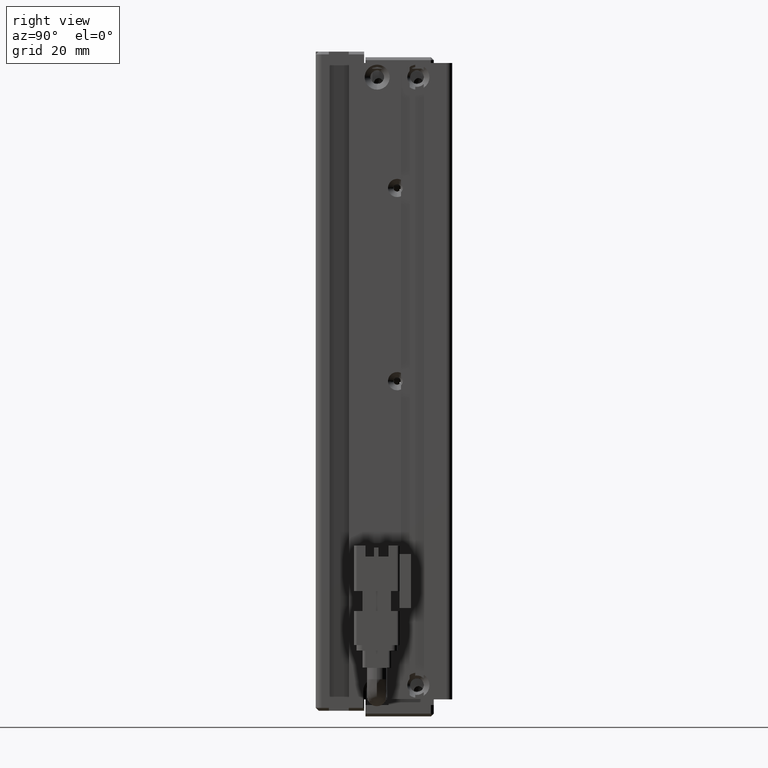
[diagram: clean part render]
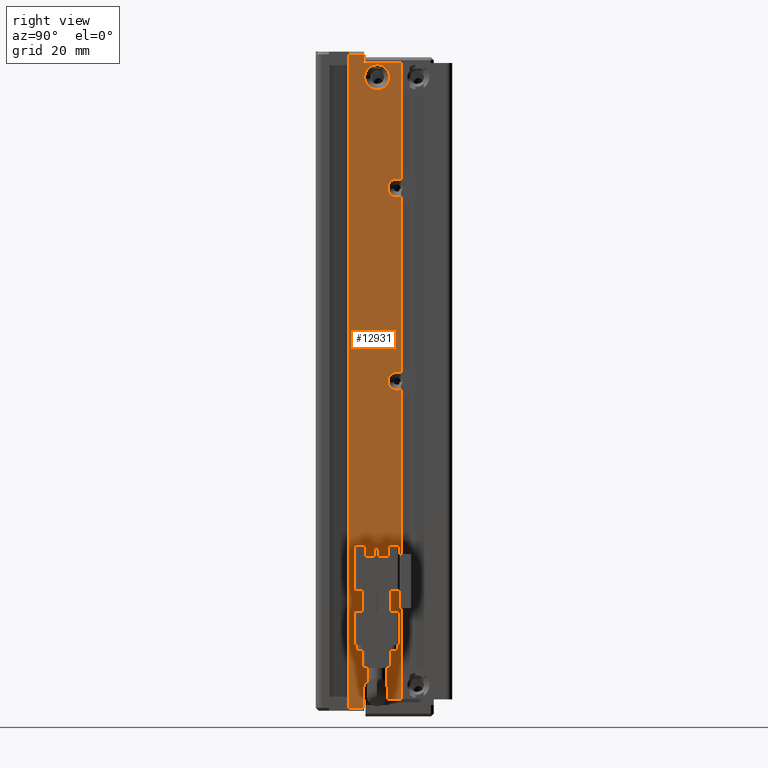
[diagram: same view with one face highlighted and labeled with its STEP entity id]
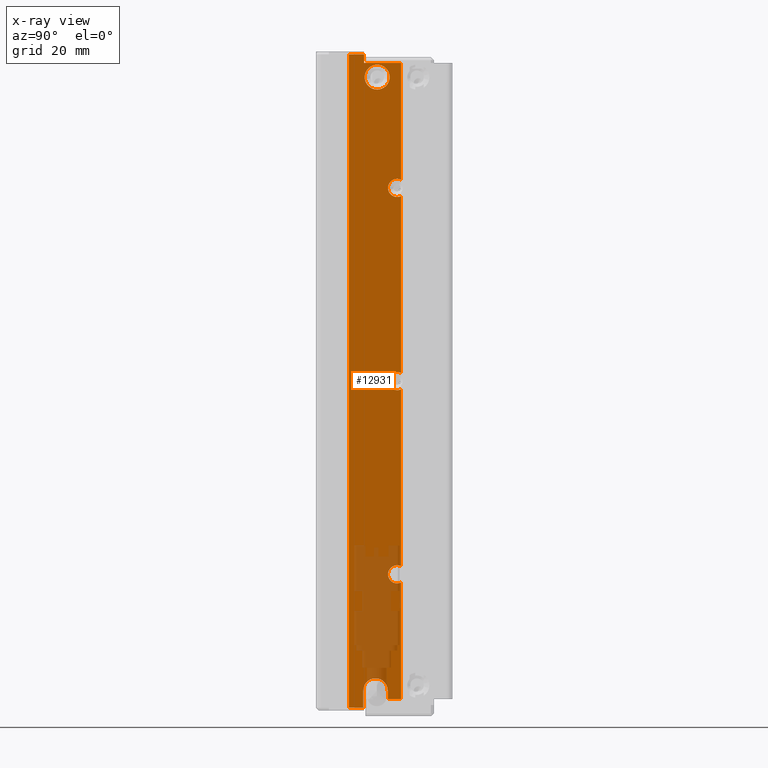
[diagram: x-ray of the same camera — body ghosted, the highlighted face saturated]
A machine part, right view. The second image highlights one B-rep face of the part: STEP entity #12931.
The next image is the same camera in x-ray: the body ghosted, the highlighted face saturated — about 15% of this face is hidden behind the body in this view.
In plain terms, the highlighted planar face has unit normal (-1, 0, 0).
Its self-contained STEP definition (entity closure, byte-faithful):
#39 = CARTESIAN_POINT ( 'NONE',  ( 51.82661489659529500, 23.39432492616544900, -56.00634592792313500 ) ) ;
#390 = DIRECTION ( 'NONE',  ( 0.0000000000000000000, 0.0000000000000000000, 1.000000000000000000 ) ) ;
#856 = CARTESIAN_POINT ( 'NONE',  ( 51.82661489659529500, 16.54432492616542300, -56.50634592792312800 ) ) ;
#1176 = ORIENTED_EDGE ( 'NONE', *, *, #17028, .F. ) ;
#2362 = DIRECTION ( 'NONE',  ( -0.0000000000000000000, -0.0000000000000000000, -1.000000000000000000 ) ) ;
#2844 = VECTOR ( 'NONE', #24170, 1000.000000000000000 ) ;
#3999 = EDGE_CURVE ( 'NONE', #47282, #50619, #27626, .T. ) ;
#4236 = CIRCLE ( 'NONE', #43521, 1.599999999996271100 ) ;
#4741 = LINE ( 'NONE', #28181, #71308 ) ;
#4919 = CARTESIAN_POINT ( 'NONE',  ( 51.82661489659528800, 6.837390071471488400, -56.50634592792312800 ) ) ;
#4928 = AXIS2_PLACEMENT_3D ( 'NONE', #19637, #64408, #36575 ) ;
#5599 = CARTESIAN_POINT ( 'NONE',  ( 51.82661489663122700, 21.24432492616542200, -168.4563459279231400 ) ) ;
#5720 = CARTESIAN_POINT ( 'NONE',  ( 51.82661489657516500, 25.74432492616542200, -146.5675964708904600 ) ) ;
#5795 = CARTESIAN_POINT ( 'NONE',  ( 51.82661489661668200, 21.54432492616541600, -60.50634592792314200 ) ) ;
#5967 = CARTESIAN_POINT ( 'NONE',  ( 51.82661489652895200, 25.04432492616542300, -80.00634592792313500 ) ) ;
#6179 = ORIENTED_EDGE ( 'NONE', *, *, #37930, .F. ) ;
#6221 = DIRECTION ( 'NONE',  ( 1.000000000000000000, 0.0000000000000000000, 0.0000000000000000000 ) ) ;
#6230 = CARTESIAN_POINT ( 'NONE',  ( 51.82661489659529500, 6.837390071471488400, -56.00634592792313500 ) ) ;
#6252 = LINE ( 'NONE', #36630, #26356 ) ;
#6421 = DIRECTION ( 'NONE',  ( 0.0000000000000000000, 0.0000000000000000000, -1.000000000000000000 ) ) ;
#6923 = VERTEX_POINT ( 'NONE', #55716 ) ;
#7235 = CARTESIAN_POINT ( 'NONE',  ( 51.82661489657825600, 25.74432492616542200, -115.4450953849179300 ) ) ;
#7444 = AXIS2_PLACEMENT_3D ( 'NONE', #22752, #17871, #6421 ) ;
#7774 = CARTESIAN_POINT ( 'NONE',  ( 51.82661489659529500, 23.39432492616544900, -170.0063459279231500 ) ) ;
#7853 = CARTESIAN_POINT ( 'NONE',  ( 51.82661489659529500, 34.74432492616542600, -58.00634592792312800 ) ) ;
#7915 = EDGE_CURVE ( 'NONE', #24729, #66932, #50983, .T. ) ;
#8035 = AXIS2_PLACEMENT_3D ( 'NONE', #5967, #28479, #22318 ) ;
#8928 = CARTESIAN_POINT ( 'NONE',  ( 51.82661489657438400, 25.04432492616542300, -115.6063459279194100 ) ) ;
#8968 = CARTESIAN_POINT ( 'NONE',  ( 51.82661489657516500, 25.74432492616542200, -149.4450953849558100 ) ) ;
#8993 = EDGE_CURVE ( 'NONE', #37058, #6923, #31469, .T. ) ;
#9156 = ORIENTED_EDGE ( 'NONE', *, *, #15597, .F. ) ;
#9166 = DIRECTION ( 'NONE',  ( 1.000000000000000000, 0.0000000000000000000, 0.0000000000000000000 ) ) ;
#9816 = EDGE_CURVE ( 'NONE', #60260, #17286, #18993, .T. ) ;
#9842 = EDGE_CURVE ( 'NONE', #44412, #63257, #23392, .T. ) ;
#10588 = VERTEX_POINT ( 'NONE', #60768 ) ;
#11715 = CARTESIAN_POINT ( 'NONE',  ( 51.82661489659530200, 16.54432492616542300, -171.5063459279231200 ) ) ;
#12105 = DIRECTION ( 'NONE',  ( -0.0000000000000000000, -0.0000000000000000000, -1.000000000000000000 ) ) ;
#12612 = CARTESIAN_POINT ( 'NONE',  ( 51.82661489661326500, 19.09432492614743300, -168.4563459279231400 ) ) ;
#12931 = ADVANCED_FACE ( 'NONE', ( #18497, #16729 ), #61770, .F. ) ;
#13112 = EDGE_CURVE ( 'NONE', #66932, #24729, #71883, .T. ) ;
#13479 = DIRECTION ( 'NONE',  ( -0.0000000000000000000, -1.000000000000000000, -0.0000000000000000000 ) ) ;
#13641 = CARTESIAN_POINT ( 'NONE',  ( 51.82661489659040700, 25.04432492616542300, -148.0063459279231500 ) ) ;
#14301 = CIRCLE ( 'NONE', #14404, 1.599999999996271100 ) ;
#14404 = AXIS2_PLACEMENT_3D ( 'NONE', #37164, #9166, #42813 ) ;
#14521 = EDGE_CURVE ( 'NONE', #47467, #55390, #18327, .T. ) ;
#14630 = ORIENTED_EDGE ( 'NONE', *, *, #71509, .F. ) ;
#14755 = ORIENTED_EDGE ( 'NONE', *, *, #9816, .F. ) ;
#15396 = CARTESIAN_POINT ( 'NONE',  ( 51.82661489659040700, 25.04432492616542300, -146.4063459278700300 ) ) ;
#15597 = EDGE_CURVE ( 'NONE', #6923, #46266, #21556, .T. ) ;
#16071 = AXIS2_PLACEMENT_3D ( 'NONE', #61759, #6221, #23279 ) ;
#16573 = VECTOR ( 'NONE', #44093, 1000.000000000000000 ) ;
#16639 = DIRECTION ( 'NONE',  ( -0.0000000000000000000, 1.000000000000000000, 0.0000000000000000000 ) ) ;
#16729 = FACE_BOUND ( 'NONE', #62972, .T. ) ;
#16908 = ORIENTED_EDGE ( 'NONE', *, *, #69324, .F. ) ;
#17028 = EDGE_CURVE ( 'NONE', #37837, #47903, #42294, .T. ) ;
#17262 = ORIENTED_EDGE ( 'NONE', *, *, #14521, .F. ) ;
#17282 = CARTESIAN_POINT ( 'NONE',  ( 51.82661489652895200, 25.04432492616542300, -78.40634592787003500 ) ) ;
#17286 = VERTEX_POINT ( 'NONE', #47327 ) ;
#17514 = CARTESIAN_POINT ( 'NONE',  ( 51.82661489659529500, 25.74432492616542200, -56.00634592792313500 ) ) ;
#17871 = DIRECTION ( 'NONE',  ( 1.000000000000000000, 0.0000000000000000000, 0.0000000000000000000 ) ) ;
#18011 = CARTESIAN_POINT ( 'NONE',  ( 51.82661489659040700, 25.04432492616542300, -148.0063459279231500 ) ) ;
#18196 = ORIENTED_EDGE ( 'NONE', *, *, #7915, .F. ) ;
#18327 = LINE ( 'NONE', #48759, #16573 ) ;
#18336 = AXIS2_PLACEMENT_3D ( 'NONE', #39901, #22907, #23143 ) ;
#18497 = FACE_OUTER_BOUND ( 'NONE', #32570, .T. ) ;
#18993 = LINE ( 'NONE', #17514, #26008 ) ;
#19442 = VERTEX_POINT ( 'NONE', #68143 ) ;
#19533 = EDGE_CURVE ( 'NONE', #10588, #27877, #31855, .T. ) ;
#19637 = CARTESIAN_POINT ( 'NONE',  ( 51.82661489661668200, 21.54432492616541600, -60.50634592792314200 ) ) ;
#19797 = CIRCLE ( 'NONE', #65814, 2.150000000003093900 ) ;
#20646 = VECTOR ( 'NONE', #21333, 1000.000000000000000 ) ;
#21001 = AXIS2_PLACEMENT_3D ( 'NONE', #18011, #45552, #68434 ) ;
#21333 = DIRECTION ( 'NONE',  ( -0.0000000000000000000, -1.000000000000000000, 0.0000000000000000000 ) ) ;
#21464 = LINE ( 'NONE', #40349, #62661 ) ;
#21556 = LINE ( 'NONE', #65377, #63604 ) ;
#22318 = DIRECTION ( 'NONE',  ( 0.0000000000000000000, 0.0000000000000000000, -1.000000000000000000 ) ) ;
#22752 = CARTESIAN_POINT ( 'NONE',  ( 51.82661489659040700, 25.04432492616542300, -148.0063459279231500 ) ) ;
#22907 = DIRECTION ( 'NONE',  ( 1.000000000000000000, 0.0000000000000000000, 0.0000000000000000000 ) ) ;
#23049 = CARTESIAN_POINT ( 'NONE',  ( 51.82661489657438400, 25.04432492616542300, -114.0063459279231400 ) ) ;
#23143 = DIRECTION ( 'NONE',  ( 0.0000000000000000000, 0.0000000000000000000, -1.000000000000000000 ) ) ;
#23279 = DIRECTION ( 'NONE',  ( 0.0000000000000000000, 0.0000000000000000000, -1.000000000000000000 ) ) ;
#23392 = CIRCLE ( 'NONE', #21001, 1.600000000053114500 ) ;
#23897 = ORIENTED_EDGE ( 'NONE', *, *, #53147, .F. ) ;
#24049 = CARTESIAN_POINT ( 'NONE',  ( 51.82661489662223900, 23.39432492615064200, -168.4563459279231400 ) ) ;
#24170 = DIRECTION ( 'NONE',  ( 0.0000000000000000000, 0.0000000000000000000, 1.000000000000000000 ) ) ;
#24188 = DIRECTION ( 'NONE',  ( 1.000000000000000000, 0.0000000000000000000, 0.0000000000000000000 ) ) ;
#24310 = CARTESIAN_POINT ( 'NONE',  ( 51.82661489659529500, 25.74432492616542200, -56.00634592792313500 ) ) ;
#24729 = VERTEX_POINT ( 'NONE', #45033 ) ;
#24903 = DIRECTION ( 'NONE',  ( -0.0000000000000000000, -1.000000000000000000, 0.0000000000000000000 ) ) ;
#25134 = EDGE_CURVE ( 'NONE', #50619, #10588, #28439, .T. ) ;
#26008 = VECTOR ( 'NONE', #12105, 1000.000000000000000 ) ;
#26356 = VECTOR ( 'NONE', #49144, 1000.000000000000000 ) ;
#26773 = EDGE_CURVE ( 'NONE', #48389, #37058, #6252, .T. ) ;
#26818 = LINE ( 'NONE', #71043, #20646 ) ;
#27234 = LINE ( 'NONE', #52918, #46593 ) ;
#27350 = CARTESIAN_POINT ( 'NONE',  ( 51.82661489659530200, 19.09432492616539500, -171.5063459279231200 ) ) ;
#27626 = CIRCLE ( 'NONE', #18336, 1.600000000053114500 ) ;
#27877 = VERTEX_POINT ( 'NONE', #32229 ) ;
#28181 = CARTESIAN_POINT ( 'NONE',  ( 51.82661489659529500, 25.74432492616542200, -56.00634592792313500 ) ) ;
#28439 = CIRCLE ( 'NONE', #8035, 1.600000000053114500 ) ;
#28479 = DIRECTION ( 'NONE',  ( 1.000000000000000000, 0.0000000000000000000, 0.0000000000000000000 ) ) ;
#29210 = CARTESIAN_POINT ( 'NONE',  ( 51.82661489659040700, 25.04432492616542300, -149.6063459279762600 ) ) ;
#29637 = ORIENTED_EDGE ( 'NONE', *, *, #8993, .F. ) ;
#31440 = EDGE_CURVE ( 'NONE', #47903, #47467, #19797, .T. ) ;
#31469 = LINE ( 'NONE', #4919, #72596 ) ;
#31855 = LINE ( 'NONE', #24310, #71184 ) ;
#31927 = DIRECTION ( 'NONE',  ( -0.0000000000000000000, -0.0000000000000000000, -1.000000000000000000 ) ) ;
#32229 = CARTESIAN_POINT ( 'NONE',  ( 51.82661489657825600, 25.74432492616542200, -112.5675964709283500 ) ) ;
#32415 = ORIENTED_EDGE ( 'NONE', *, *, #48360, .F. ) ;
#32570 = EDGE_LOOP ( 'NONE', ( #29637, #65632, #6179, #17262, #70206, #1176, #16908, #34604, #32415, #41818, #43355, #14630, #49609, #62663, #62964, #62024, #35083, #66505, #23897, #14755, #55471, #9156 ) ) ;
#33901 = DIRECTION ( 'NONE',  ( -1.000000000000000000, 0.0000000000000000000, 0.0000000000000000000 ) ) ;
#34604 = ORIENTED_EDGE ( 'NONE', *, *, #39533, .F. ) ;
#34679 = VERTEX_POINT ( 'NONE', #7235 ) ;
#34757 = CARTESIAN_POINT ( 'NONE',  ( 51.82661489661668200, 21.54432492616541600, -62.70634592799617500 ) ) ;
#35083 = ORIENTED_EDGE ( 'NONE', *, *, #25134, .F. ) ;
#35354 = EDGE_CURVE ( 'NONE', #50407, #34679, #70844, .T. ) ;
#36021 = CIRCLE ( 'NONE', #36527, 1.600000000053114500 ) ;
#36527 = AXIS2_PLACEMENT_3D ( 'NONE', #65283, #48272, #48528 ) ;
#36575 = DIRECTION ( 'NONE',  ( 0.0000000000000000000, 0.0000000000000000000, -1.000000000000000000 ) ) ;
#36630 = CARTESIAN_POINT ( 'NONE',  ( 51.82661489659529500, 16.54432492616542300, -56.00634592792313500 ) ) ;
#37058 = VERTEX_POINT ( 'NONE', #856 ) ;
#37164 = CARTESIAN_POINT ( 'NONE',  ( 51.82661489657438400, 25.04432492616542300, -114.0063459279231400 ) ) ;
#37837 = VERTEX_POINT ( 'NONE', #7774 ) ;
#37930 = EDGE_CURVE ( 'NONE', #55390, #48389, #27234, .T. ) ;
#39462 = ORIENTED_EDGE ( 'NONE', *, *, #13112, .F. ) ;
#39533 = EDGE_CURVE ( 'NONE', #43416, #62362, #21464, .T. ) ;
#39901 = CARTESIAN_POINT ( 'NONE',  ( 51.82661489652895200, 25.04432492616542300, -80.00634592792313500 ) ) ;
#40349 = CARTESIAN_POINT ( 'NONE',  ( 51.82661489659529500, 25.74432492616542200, -56.00634592792313500 ) ) ;
#40921 = CIRCLE ( 'NONE', #58081, 1.600000000053114500 ) ;
#41217 = DIRECTION ( 'NONE',  ( 0.0000000000000000000, 0.0000000000000000000, -1.000000000000000000 ) ) ;
#41818 = ORIENTED_EDGE ( 'NONE', *, *, #9842, .F. ) ;
#42294 = LINE ( 'NONE', #39, #2844 ) ;
#42813 = DIRECTION ( 'NONE',  ( 0.0000000000000000000, 0.0000000000000000000, -1.000000000000000000 ) ) ;
#43355 = ORIENTED_EDGE ( 'NONE', *, *, #57569, .F. ) ;
#43416 = VERTEX_POINT ( 'NONE', #8968 ) ;
#43521 = AXIS2_PLACEMENT_3D ( 'NONE', #23049, #67374, #62724 ) ;
#43672 = VECTOR ( 'NONE', #13479, 1000.000000000000000 ) ;
#44093 = DIRECTION ( 'NONE',  ( -0.0000000000000000000, -0.0000000000000000000, -1.000000000000000000 ) ) ;
#44181 = EDGE_CURVE ( 'NONE', #60260, #46266, #70648, .T. ) ;
#44412 = VERTEX_POINT ( 'NONE', #15396 ) ;
#45033 = CARTESIAN_POINT ( 'NONE',  ( 51.82661489661668200, 21.54432492616541600, -58.30634592785011000 ) ) ;
#45042 = DIRECTION ( 'NONE',  ( 0.0000000000000000000, 0.0000000000000000000, -1.000000000000000000 ) ) ;
#45552 = DIRECTION ( 'NONE',  ( 1.000000000000000000, 0.0000000000000000000, 0.0000000000000000000 ) ) ;
#46266 = VERTEX_POINT ( 'NONE', #52788 ) ;
#46593 = VECTOR ( 'NONE', #24903, 1000.000000000000000 ) ;
#47282 = VERTEX_POINT ( 'NONE', #17282 ) ;
#47327 = CARTESIAN_POINT ( 'NONE',  ( 51.82661489653072800, 25.74432492616542200, -78.56759647086789800 ) ) ;
#47467 = VERTEX_POINT ( 'NONE', #12612 ) ;
#47903 = VERTEX_POINT ( 'NONE', #24049 ) ;
#48272 = DIRECTION ( 'NONE',  ( 1.000000000000000000, 0.0000000000000000000, 0.0000000000000000000 ) ) ;
#48360 = EDGE_CURVE ( 'NONE', #63257, #43416, #66512, .T. ) ;
#48389 = VERTEX_POINT ( 'NONE', #11715 ) ;
#48528 = DIRECTION ( 'NONE',  ( 0.0000000000000000000, 0.0000000000000000000, -1.000000000000000000 ) ) ;
#48759 = CARTESIAN_POINT ( 'NONE',  ( 51.82661489659529500, 19.09432492616539500, -56.00634592792313500 ) ) ;
#49144 = DIRECTION ( 'NONE',  ( 0.0000000000000000000, 0.0000000000000000000, 1.000000000000000000 ) ) ;
#49609 = ORIENTED_EDGE ( 'NONE', *, *, #35354, .F. ) ;
#50351 = CARTESIAN_POINT ( 'NONE',  ( 51.82661489652895200, 25.04432492616542300, -81.60634592797623600 ) ) ;
#50407 = VERTEX_POINT ( 'NONE', #8928 ) ;
#50442 = DIRECTION ( 'NONE',  ( 1.000000000000000000, 0.0000000000000000000, 0.0000000000000000000 ) ) ;
#50619 = VERTEX_POINT ( 'NONE', #50351 ) ;
#50983 = CIRCLE ( 'NONE', #70551, 2.200000000073032400 ) ;
#52092 = DIRECTION ( 'NONE',  ( -0.0000000000000000000, -0.0000000000000000000, -1.000000000000000000 ) ) ;
#52788 = CARTESIAN_POINT ( 'NONE',  ( 51.82661489659529500, 19.24432492616541900, -58.00634592792312100 ) ) ;
#52918 = CARTESIAN_POINT ( 'NONE',  ( 51.82661489659529500, 6.837390071471488400, -171.5063459279231200 ) ) ;
#53147 = EDGE_CURVE ( 'NONE', #17286, #47282, #36021, .T. ) ;
#54609 = CARTESIAN_POINT ( 'NONE',  ( 51.82661489659529500, 25.74432492616542200, -170.0063459279231500 ) ) ;
#55390 = VERTEX_POINT ( 'NONE', #27350 ) ;
#55471 = ORIENTED_EDGE ( 'NONE', *, *, #44181, .T. ) ;
#55716 = CARTESIAN_POINT ( 'NONE',  ( 51.82661489659529500, 19.24432492616542200, -56.50634592792312800 ) ) ;
#57111 = EDGE_CURVE ( 'NONE', #27877, #19442, #4236, .T. ) ;
#57569 = EDGE_CURVE ( 'NONE', #69841, #44412, #40921, .T. ) ;
#58081 = AXIS2_PLACEMENT_3D ( 'NONE', #13641, #24188, #41217 ) ;
#58290 = EDGE_CURVE ( 'NONE', #19442, #50407, #14301, .T. ) ;
#60260 = VERTEX_POINT ( 'NONE', #72315 ) ;
#60768 = CARTESIAN_POINT ( 'NONE',  ( 51.82661489653072100, 25.74432492616542200, -81.44509538497834500 ) ) ;
#61172 = DIRECTION ( 'NONE',  ( 0.0000000000000000000, 0.0000000000000000000, -1.000000000000000000 ) ) ;
#61258 = DIRECTION ( 'NONE',  ( -0.0000000000000000000, -0.0000000000000000000, -1.000000000000000000 ) ) ;
#61759 = CARTESIAN_POINT ( 'NONE',  ( 51.82661489657438400, 25.04432492616542300, -114.0063459279231400 ) ) ;
#61770 = PLANE ( 'NONE',  #62604 ) ;
#62024 = ORIENTED_EDGE ( 'NONE', *, *, #19533, .F. ) ;
#62362 = VERTEX_POINT ( 'NONE', #54609 ) ;
#62604 = AXIS2_PLACEMENT_3D ( 'NONE', #6230, #33901, #390 ) ;
#62661 = VECTOR ( 'NONE', #2362, 1000.000000000000000 ) ;
#62663 = ORIENTED_EDGE ( 'NONE', *, *, #58290, .F. ) ;
#62724 = DIRECTION ( 'NONE',  ( 0.0000000000000000000, 0.0000000000000000000, -1.000000000000000000 ) ) ;
#62964 = ORIENTED_EDGE ( 'NONE', *, *, #57111, .F. ) ;
#62972 = EDGE_LOOP ( 'NONE', ( #39462, #18196 ) ) ;
#63257 = VERTEX_POINT ( 'NONE', #29210 ) ;
#63604 = VECTOR ( 'NONE', #31927, 1000.000000000000000 ) ;
#64408 = DIRECTION ( 'NONE',  ( 1.000000000000000000, -0.0000000000000000000, 0.0000000000000000000 ) ) ;
#65283 = CARTESIAN_POINT ( 'NONE',  ( 51.82661489652895200, 25.04432492616542300, -80.00634592792313500 ) ) ;
#65377 = CARTESIAN_POINT ( 'NONE',  ( 51.82661489659529500, 19.24432492616542200, -56.00634592792313500 ) ) ;
#65632 = ORIENTED_EDGE ( 'NONE', *, *, #26773, .F. ) ;
#65814 = AXIS2_PLACEMENT_3D ( 'NONE', #5599, #50442, #61172 ) ;
#66505 = ORIENTED_EDGE ( 'NONE', *, *, #3999, .F. ) ;
#66512 = CIRCLE ( 'NONE', #7444, 1.600000000053114500 ) ;
#66932 = VERTEX_POINT ( 'NONE', #34757 ) ;
#67178 = DIRECTION ( 'NONE',  ( 1.000000000000000000, -0.0000000000000000000, 0.0000000000000000000 ) ) ;
#67374 = DIRECTION ( 'NONE',  ( 1.000000000000000000, 0.0000000000000000000, 0.0000000000000000000 ) ) ;
#68143 = CARTESIAN_POINT ( 'NONE',  ( 51.82661489657438400, 25.04432492616542300, -112.4063459279268600 ) ) ;
#68434 = DIRECTION ( 'NONE',  ( 0.0000000000000000000, 0.0000000000000000000, -1.000000000000000000 ) ) ;
#69324 = EDGE_CURVE ( 'NONE', #62362, #37837, #26818, .T. ) ;
#69841 = VERTEX_POINT ( 'NONE', #5720 ) ;
#70206 = ORIENTED_EDGE ( 'NONE', *, *, #31440, .F. ) ;
#70551 = AXIS2_PLACEMENT_3D ( 'NONE', #5795, #67178, #45042 ) ;
#70648 = LINE ( 'NONE', #7853, #43672 ) ;
#70844 = CIRCLE ( 'NONE', #16071, 1.599999999996271100 ) ;
#71043 = CARTESIAN_POINT ( 'NONE',  ( 51.82661489659529500, 6.837390071471488400, -170.0063459279231500 ) ) ;
#71184 = VECTOR ( 'NONE', #52092, 1000.000000000000000 ) ;
#71308 = VECTOR ( 'NONE', #61258, 1000.000000000000000 ) ;
#71509 = EDGE_CURVE ( 'NONE', #34679, #69841, #4741, .T. ) ;
#71883 = CIRCLE ( 'NONE', #4928, 2.200000000073032400 ) ;
#72315 = CARTESIAN_POINT ( 'NONE',  ( 51.82661489659529500, 25.74432492616542600, -58.00634592792312100 ) ) ;
#72596 = VECTOR ( 'NONE', #16639, 1000.000000000000000 ) ;